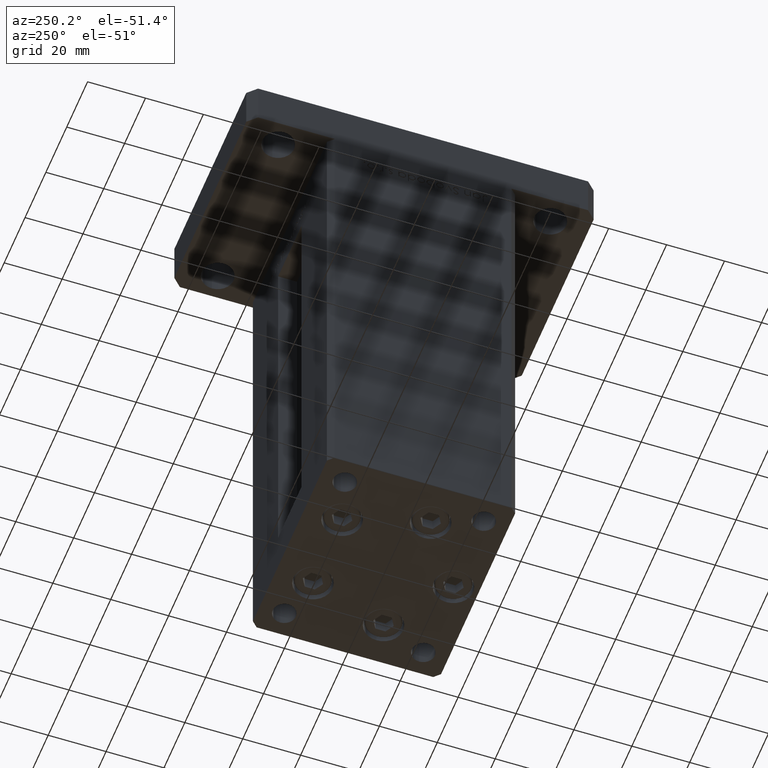
[diagram: clean part render]
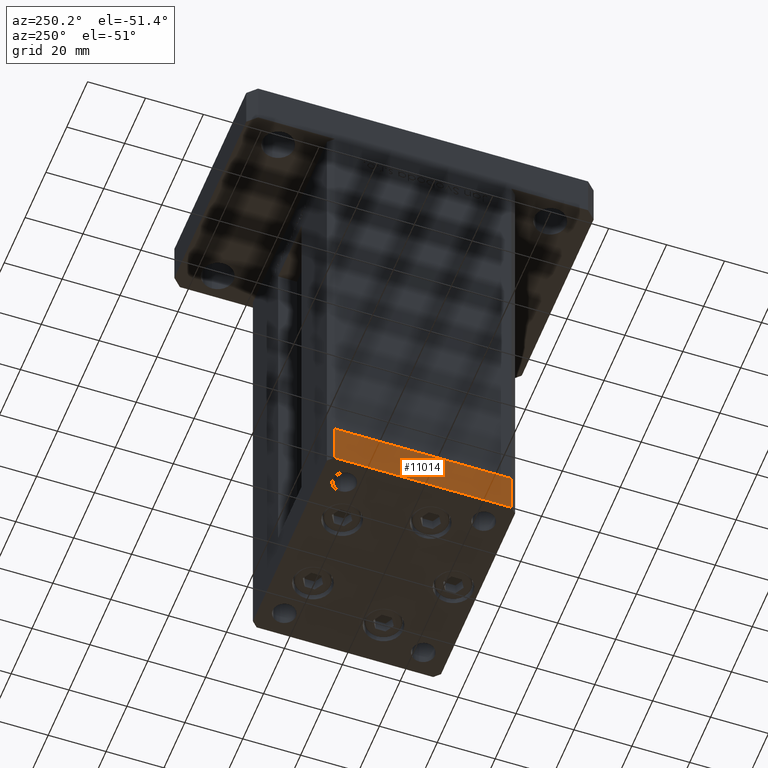
[diagram: same view with one face highlighted and labeled with its STEP entity id]
A machine part, auxiliary view. The second image highlights one B-rep face of the part: STEP entity #11014.
In plain terms, the highlighted planar face has unit normal (-1, 0, 0).
Its self-contained STEP definition (entity closure, byte-faithful):
#614 = CARTESIAN_POINT ( 'NONE',  ( 37.50000000000001421, -30.50000000000000711, 0.000000000000000000 ) ) ;
#5926 = ORIENTED_EDGE ( 'NONE', *, *, #19246, .F. ) ;
#7149 = CARTESIAN_POINT ( 'NONE',  ( 37.50000000000001421, -30.50000000000000711, -15.00000000000000000 ) ) ;
#7399 = VERTEX_POINT ( 'NONE', #7149 ) ;
#8140 = VECTOR ( 'NONE', #30371, 1000.000000000000000 ) ;
#9471 = DIRECTION ( 'NONE',  ( -1.478780668045803018E-15, 1.000000000000000000, 0.000000000000000000 ) ) ;
#10033 = CARTESIAN_POINT ( 'NONE',  ( 37.50000000000001421, -30.50000000000000711, 0.000000000000000000 ) ) ;
#11014 = ADVANCED_FACE ( 'NONE', ( #46071 ), #34143, .T. ) ;
#11583 = VERTEX_POINT ( 'NONE', #614 ) ;
#12336 = EDGE_CURVE ( 'NONE', #11583, #29839, #18694, .T. ) ;
#13980 = CARTESIAN_POINT ( 'NONE',  ( 37.50000000000001421, -30.50000000000000711, -15.00000000000000000 ) ) ;
#14413 = VECTOR ( 'NONE', #32143, 1000.000000000000000 ) ;
#15594 = CARTESIAN_POINT ( 'NONE',  ( 37.50000000000001421, -30.50000000000000711, -15.00000000000000000 ) ) ;
#17736 = CARTESIAN_POINT ( 'NONE',  ( 37.49999999999992184, 30.50000000000001066, 0.000000000000000000 ) ) ;
#17833 = VECTOR ( 'NONE', #18305, 1000.000000000000000 ) ;
#18305 = DIRECTION ( 'NONE',  ( 0.000000000000000000, 0.000000000000000000, 1.000000000000000000 ) ) ;
#18578 = ORIENTED_EDGE ( 'NONE', *, *, #50490, .T. ) ;
#18694 = LINE ( 'NONE', #10033, #8140 ) ;
#19246 = EDGE_CURVE ( 'NONE', #7399, #11583, #34850, .T. ) ;
#20802 = EDGE_LOOP ( 'NONE', ( #50168, #5926, #18578, #25212 ) ) ;
#21021 = VERTEX_POINT ( 'NONE', #28719 ) ;
#25212 = ORIENTED_EDGE ( 'NONE', *, *, #31437, .T. ) ;
#28719 = CARTESIAN_POINT ( 'NONE',  ( 37.49999999999992184, 30.50000000000001066, -15.00000000000000000 ) ) ;
#29839 = VERTEX_POINT ( 'NONE', #17736 ) ;
#30371 = DIRECTION ( 'NONE',  ( -1.478780668045802821E-15, 1.000000000000000000, 0.000000000000000000 ) ) ;
#31437 = EDGE_CURVE ( 'NONE', #21021, #29839, #40955, .T. ) ;
#32143 = DIRECTION ( 'NONE',  ( -1.478780668045802821E-15, 1.000000000000000000, 0.000000000000000000 ) ) ;
#33725 = VECTOR ( 'NONE', #44484, 1000.000000000000000 ) ;
#34143 = PLANE ( 'NONE',  #50527 ) ;
#34850 = LINE ( 'NONE', #13980, #17833 ) ;
#40955 = LINE ( 'NONE', #49109, #33725 ) ;
#44484 = DIRECTION ( 'NONE',  ( 0.000000000000000000, 0.000000000000000000, 1.000000000000000000 ) ) ;
#46071 = FACE_OUTER_BOUND ( 'NONE', #20802, .T. ) ;
#49109 = CARTESIAN_POINT ( 'NONE',  ( 37.49999999999992184, 30.50000000000001066, -15.00000000000000000 ) ) ;
#49900 = DIRECTION ( 'NONE',  ( 1.000000000000000000, 1.478780668045803018E-15, -0.000000000000000000 ) ) ;
#50165 = CARTESIAN_POINT ( 'NONE',  ( 37.50000000000001421, -30.50000000000000711, -15.00000000000000000 ) ) ;
#50168 = ORIENTED_EDGE ( 'NONE', *, *, #12336, .F. ) ;
#50490 = EDGE_CURVE ( 'NONE', #7399, #21021, #52749, .T. ) ;
#50527 = AXIS2_PLACEMENT_3D ( 'NONE', #50165, #49900, #9471 ) ;
#52749 = LINE ( 'NONE', #15594, #14413 ) ;